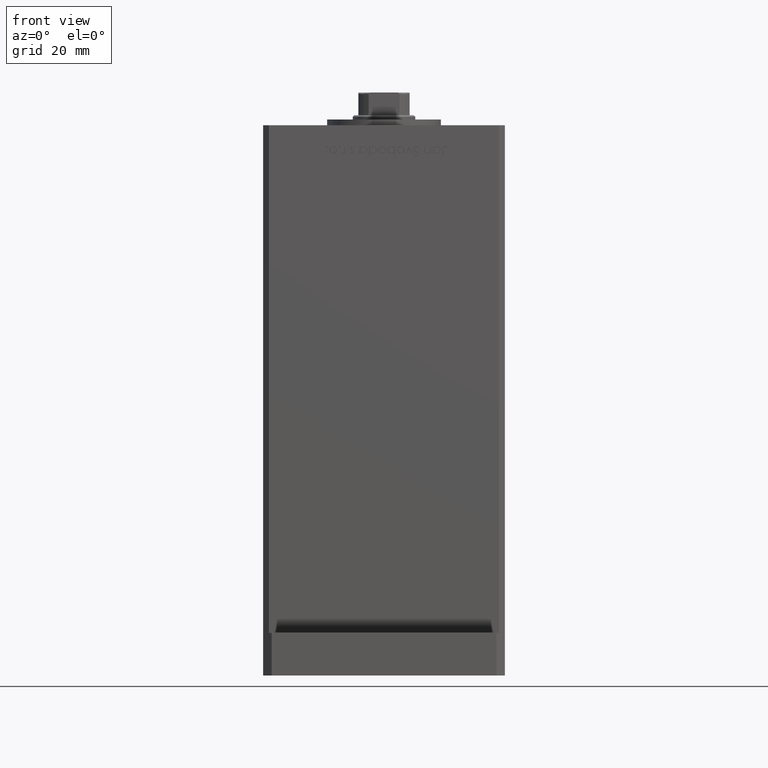
[diagram: clean part render]
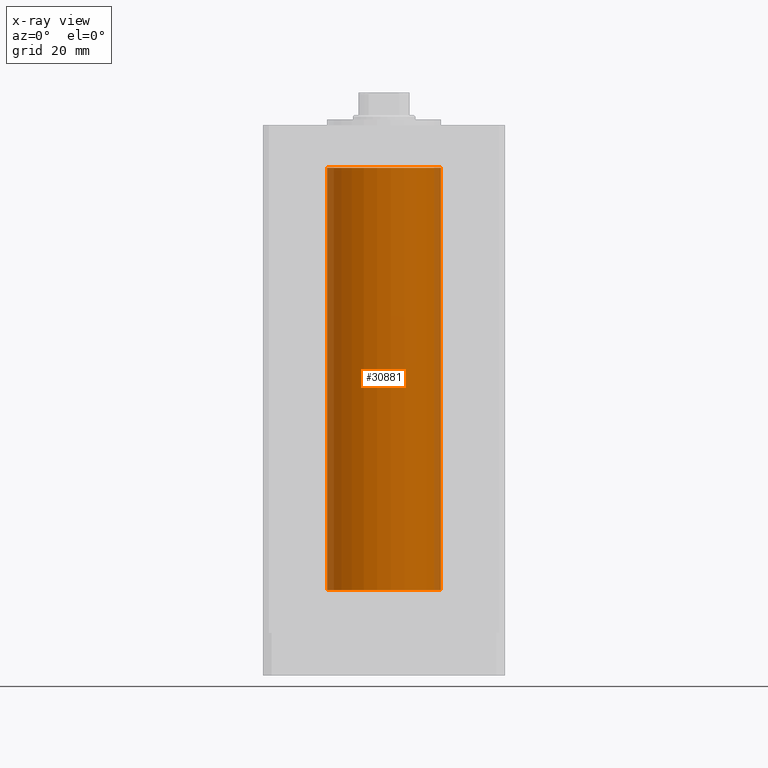
[diagram: x-ray — body ghosted, one internal face saturated and labeled with its STEP entity id]
A machine part, front view, then the same camera in x-ray: the body is ghosted and one INTERNAL B-rep face — a face not visible from any outside direction — is saturated and labeled: STEP entity #30881.
In plain terms, the highlighted cylindrical surface (partial cylindrical patch) has radius 20 mm, axis along (-0, -0, -1).
Its self-contained STEP definition (entity closure, byte-faithful):
#1161 = DIRECTION ( 'NONE',  ( -0.000000000000000000, -0.000000000000000000, -1.000000000000000000 ) ) ;
#1942 = VERTEX_POINT ( 'NONE', #29971 ) ;
#6892 = CARTESIAN_POINT ( 'NONE',  ( 0.000000000000000000, 0.000000000000000000, 148.5000000000000000 ) ) ;
#8789 = EDGE_CURVE ( 'NONE', #43066, #24517, #26776, .T. ) ;
#9941 = DIRECTION ( 'NONE',  ( -0.000000000000000000, -0.000000000000000000, -1.000000000000000000 ) ) ;
#10595 = CARTESIAN_POINT ( 'NONE',  ( -20.00000000000000000, 0.000000000000000000, 148.5000000000000000 ) ) ;
#10701 = ORIENTED_EDGE ( 'NONE', *, *, #50969, .T. ) ;
#15040 = VERTEX_POINT ( 'NONE', #16387 ) ;
#16387 = CARTESIAN_POINT ( 'NONE',  ( 20.00000000000000000, 2.449293598294706513E-15, 0.000000000000000000 ) ) ;
#20749 = VECTOR ( 'NONE', #1161, 1000.000000000000000 ) ;
#21301 = LINE ( 'NONE', #25367, #44077 ) ;
#24517 = VERTEX_POINT ( 'NONE', #51294 ) ;
#25367 = CARTESIAN_POINT ( 'NONE',  ( 20.00000000000000000, 2.449293598294706513E-15, 148.5000000000000000 ) ) ;
#26773 = FACE_OUTER_BOUND ( 'NONE', #50254, .T. ) ;
#26776 = LINE ( 'NONE', #30024, #20749 ) ;
#27368 = EDGE_CURVE ( 'NONE', #24517, #15040, #46953, .T. ) ;
#28209 = DIRECTION ( 'NONE',  ( -0.000000000000000000, 0.000000000000000000, 1.000000000000000000 ) ) ;
#28836 = DIRECTION ( 'NONE',  ( -0.000000000000000000, 0.000000000000000000, 1.000000000000000000 ) ) ;
#28992 = AXIS2_PLACEMENT_3D ( 'NONE', #6892, #28209, #44635 ) ;
#29971 = CARTESIAN_POINT ( 'NONE',  ( 20.00000000000000000, 2.449293598294706513E-15, 148.5000000000000000 ) ) ;
#30024 = CARTESIAN_POINT ( 'NONE',  ( -20.00000000000000000, 0.000000000000000000, 148.5000000000000000 ) ) ;
#30881 = ADVANCED_FACE ( 'NONE', ( #26773 ), #35647, .F. ) ;
#31616 = CARTESIAN_POINT ( 'NONE',  ( 0.000000000000000000, 0.000000000000000000, 148.5000000000000000 ) ) ;
#32612 = CARTESIAN_POINT ( 'NONE',  ( 0.000000000000000000, 0.000000000000000000, 0.000000000000000000 ) ) ;
#33875 = ORIENTED_EDGE ( 'NONE', *, *, #8789, .F. ) ;
#35381 = DIRECTION ( 'NONE',  ( -1.000000000000000000, 0.000000000000000000, 0.000000000000000000 ) ) ;
#35647 = CYLINDRICAL_SURFACE ( 'NONE', #37528, 20.00000000000000000 ) ;
#37528 = AXIS2_PLACEMENT_3D ( 'NONE', #31616, #47781, #35381 ) ;
#40915 = AXIS2_PLACEMENT_3D ( 'NONE', #32612, #28836, #45258 ) ;
#42599 = ORIENTED_EDGE ( 'NONE', *, *, #52142, .T. ) ;
#42701 = CIRCLE ( 'NONE', #28992, 20.00000000000000000 ) ;
#43066 = VERTEX_POINT ( 'NONE', #10595 ) ;
#44077 = VECTOR ( 'NONE', #9941, 1000.000000000000000 ) ;
#44635 = DIRECTION ( 'NONE',  ( 1.000000000000000000, 0.000000000000000000, 0.000000000000000000 ) ) ;
#45258 = DIRECTION ( 'NONE',  ( 1.000000000000000000, 0.000000000000000000, 0.000000000000000000 ) ) ;
#46308 = ORIENTED_EDGE ( 'NONE', *, *, #27368, .F. ) ;
#46953 = CIRCLE ( 'NONE', #40915, 20.00000000000000000 ) ;
#47781 = DIRECTION ( 'NONE',  ( -0.000000000000000000, -0.000000000000000000, -1.000000000000000000 ) ) ;
#50254 = EDGE_LOOP ( 'NONE', ( #42599, #10701, #46308, #33875 ) ) ;
#50969 = EDGE_CURVE ( 'NONE', #1942, #15040, #21301, .T. ) ;
#51294 = CARTESIAN_POINT ( 'NONE',  ( -20.00000000000000000, 0.000000000000000000, 0.000000000000000000 ) ) ;
#52142 = EDGE_CURVE ( 'NONE', #43066, #1942, #42701, .T. ) ;